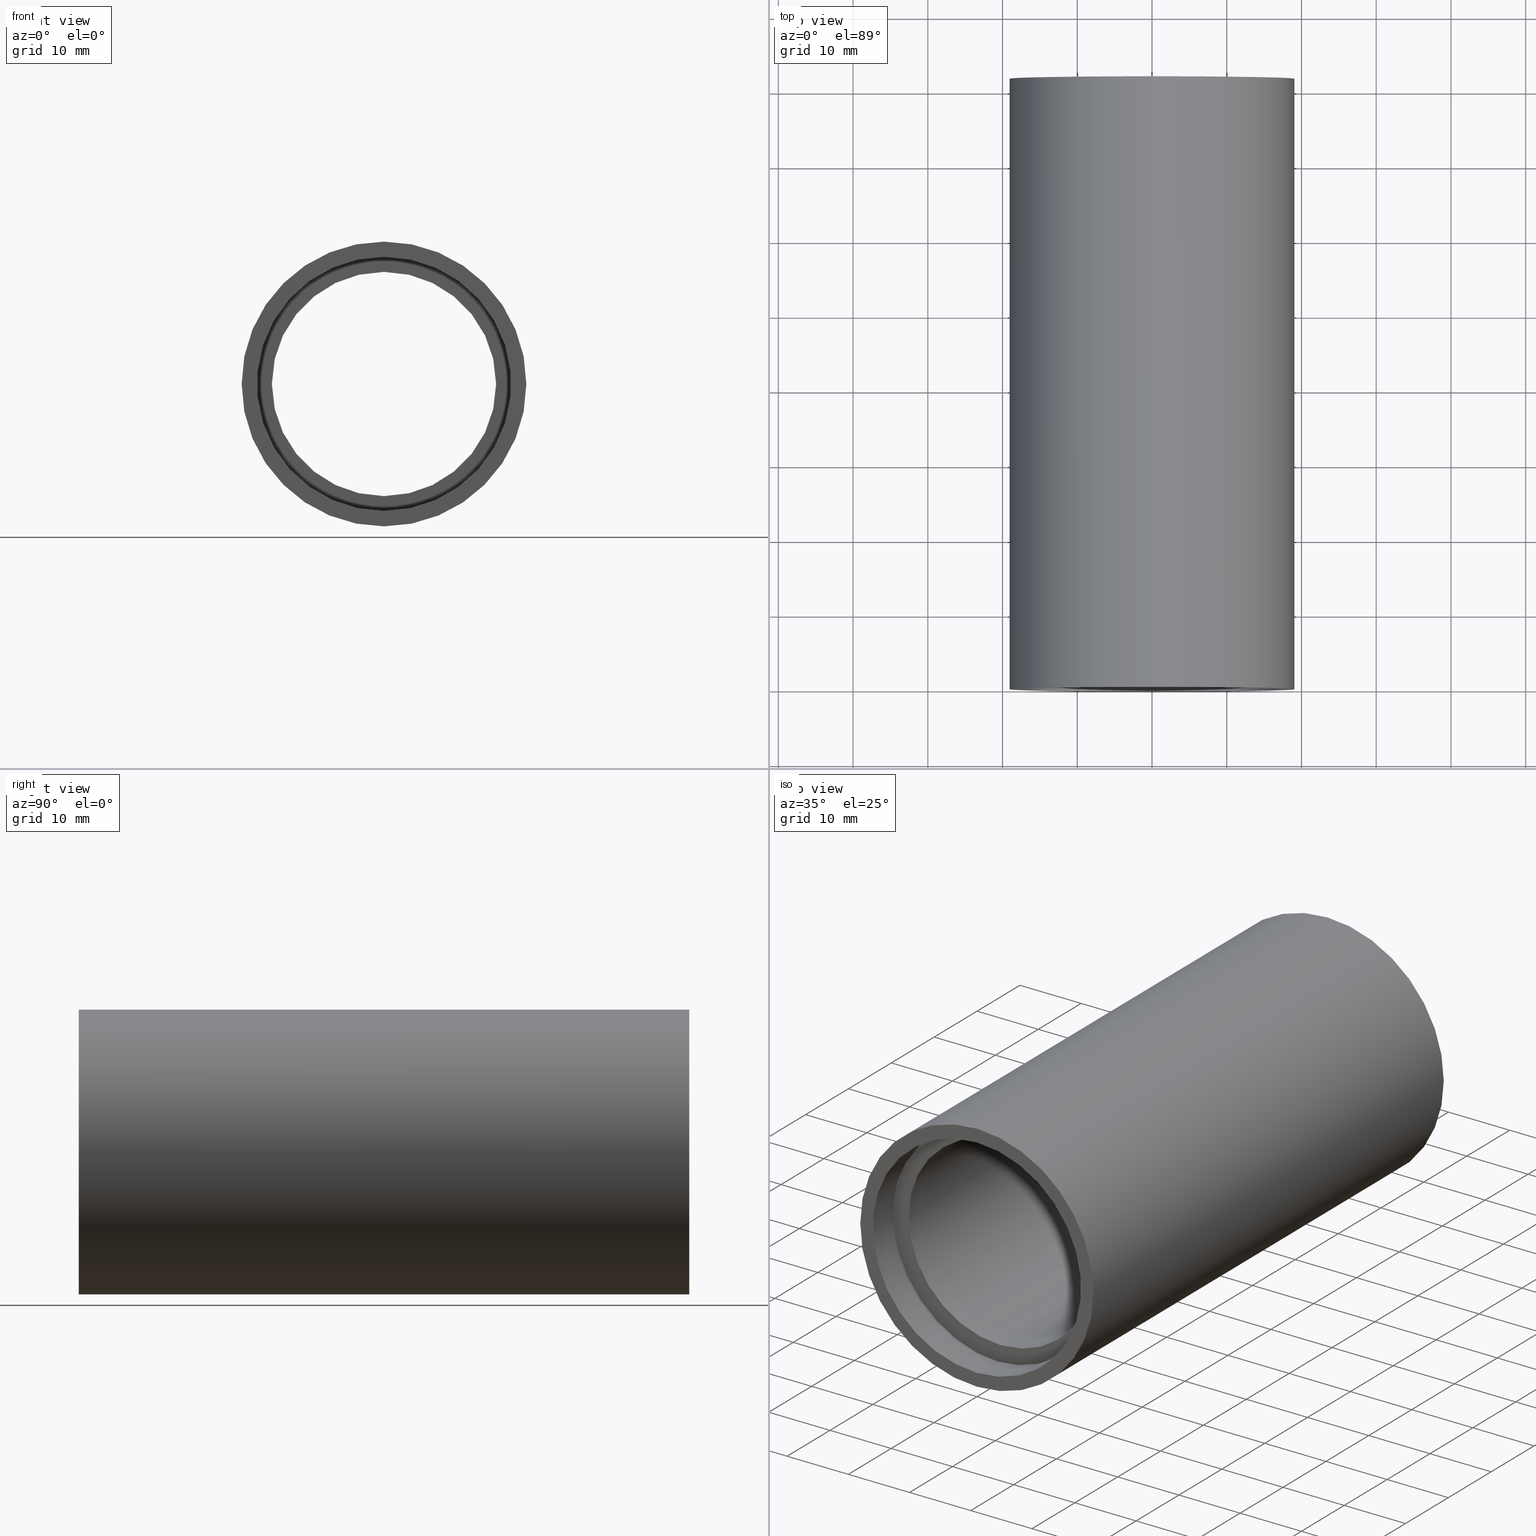
[diagram: canonical four-view strip — front | top / right | iso, engineering-drawing reading convention]
A machine part, canonical four-view strip (front | top / right | iso — engineering-drawing reading convention). The complete STEP part file that produces these views, byte-faithful:
ISO-10303-21;
HEADER;
FILE_DESCRIPTION (( 'STEP AP214' ),
    '1' );
FILE_NAME ('503039.STEP',
    '2019-09-06T01:54:21',
    ( '' ),
    ( '' ),
    'SwSTEP 2.0',
    'SolidWorks 2016',
    '' );
FILE_SCHEMA (( 'AUTOMOTIVE_DESIGN' ));
ENDSEC;

DATA;
#1 = PLANE ( 'NONE',  #54 ) ;
#2 = LINE ( 'NONE', #297, #377 ) ;
#3 = EDGE_LOOP ( 'NONE', ( #359, #121, #574, #466 ) ) ;
#4 = EDGE_CURVE ( 'NONE', #95, #38, #27, .T. ) ;
#5 = PLANE ( 'NONE',  #410 ) ;
#6 = PLANE ( 'NONE',  #172 ) ;
#7 = VERTEX_POINT ( 'NONE', #226 ) ;
#8 = VERTEX_POINT ( 'NONE', #82 ) ;
#9 = STYLED_ITEM ( 'NONE', ( #233 ), #572 ) ;
#10 = CARTESIAN_POINT ( 'NONE',  ( 0.0000000000000000000, 77.19999999999998900, 17.60000000000001200 ) ) ;
#11 = CARTESIAN_POINT ( 'NONE',  ( 0.0000000000000000000, 4.499999999999976000, 0.0000000000000000000 ) ) ;
#12 = PLANE ( 'NONE',  #41 ) ;
#13 = DIRECTION ( 'NONE',  ( 0.0000000000000000000, 0.0000000000000000000, 1.000000000000000000 ) ) ;
#14 = CARTESIAN_POINT ( 'NONE',  ( 0.0000000000000000000, 4.499999999999976000, 17.00000000000002100 ) ) ;
#15 = CIRCLE ( 'NONE', #440, 17.00000000000002100 ) ;
#16 = PRODUCT ( '503039', '503039', '', ( #19 ) ) ;
#17 = AXIS2_PLACEMENT_3D ( 'NONE', #487, #193, #330 ) ;
#18 = ORIENTED_EDGE ( 'NONE', *, *, #615, .F. ) ;
#19 = PRODUCT_CONTEXT ( 'NONE', #98, 'mechanical' ) ;
#20 = DIRECTION ( 'NONE',  ( 0.0000000000000000000, 0.0000000000000000000, 1.000000000000000000 ) ) ;
#21 = SHAPE_DEFINITION_REPRESENTATION ( #505, #159 ) ;
#22 = FACE_OUTER_BOUND ( 'NONE', #174, .T. ) ;
#23 = FACE_OUTER_BOUND ( 'NONE', #3, .T. ) ;
#24 = AXIS2_PLACEMENT_3D ( 'NONE', #261, #545, #540 ) ;
#25 = DIRECTION ( 'NONE',  ( 0.0000000000000000000, 0.0000000000000000000, 1.000000000000000000 ) ) ;
#26 = CARTESIAN_POINT ( 'NONE',  ( 1.836970198721032000E-015, 5.499999999999976900, -15.00000000000001800 ) ) ;
#27 = LINE ( 'NONE', #420, #32 ) ;
#28 = ORIENTED_EDGE ( 'NONE', *, *, #183, .F. ) ;
#29 = CARTESIAN_POINT ( 'NONE',  ( 0.0000000000000000000, 161.3761669434274500, 0.0000000000000000000 ) ) ;
#30 = ORIENTED_EDGE ( 'NONE', *, *, #162, .T. ) ;
#31 =( NAMED_UNIT ( * ) PLANE_ANGLE_UNIT ( ) SI_UNIT ( $, .RADIAN. ) );
#32 = VECTOR ( 'NONE', #619, 1000.000000000000000 ) ;
#33 = ORIENTED_EDGE ( 'NONE', *, *, #49, .F. ) ;
#34 = UNCERTAINTY_MEASURE_WITH_UNIT (LENGTH_MEASURE( 1.000000000000000100E-005 ), #136, 'distance_accuracy_value', 'NONE');
#35 = LINE ( 'NONE', #308, #396 ) ;
#36 = CARTESIAN_POINT ( 'NONE',  ( 0.0000000000000000000, 161.3761669434274500, 0.0000000000000000000 ) ) ;
#37 = CARTESIAN_POINT ( 'NONE',  ( 0.0000000000000000000, 161.3761669434274500, 19.05000000000002200 ) ) ;
#38 = VERTEX_POINT ( 'NONE', #178 ) ;
#39 = DIRECTION ( 'NONE',  ( -0.0000000000000000000, 1.000000000000000000, -0.0000000000000000000 ) ) ;
#40 = VERTEX_POINT ( 'NONE', #85 ) ;
#41 = AXIS2_PLACEMENT_3D ( 'NONE', #154, #595, #443 ) ;
#42 = CYLINDRICAL_SURFACE ( 'NONE', #88, 17.60000000000002300 ) ;
#43 = SURFACE_STYLE_USAGE ( .BOTH. , #329 ) ;
#44 = DIRECTION ( 'NONE',  ( 0.0000000000000000000, 0.0000000000000000000, 1.000000000000000000 ) ) ;
#45 = ADVANCED_FACE ( 'NONE', ( #538 ), #138, .F. ) ;
#46 = EDGE_LOOP ( 'NONE', ( #271, #371, #315, #28 ) ) ;
#47 = EDGE_LOOP ( 'NONE', ( #450, #411, #576, #534 ) ) ;
#48 = FILL_AREA_STYLE_COLOUR ( '', #364 ) ;
#49 = EDGE_CURVE ( 'NONE', #416, #95, #524, .T. ) ;
#50 = CYLINDRICAL_SURFACE ( 'NONE', #199, 15.00000000000002000 ) ;
#51 = CARTESIAN_POINT ( 'NONE',  ( 0.0000000000000000000, 5.499999999999976900, 0.0000000000000000000 ) ) ;
#52 = FILL_AREA_STYLE_COLOUR ( '', #217 ) ;
#53 = COLOUR_RGB ( '',1.000000000000000000, 1.000000000000000000, 1.000000000000000000 ) ;
#54 = AXIS2_PLACEMENT_3D ( 'NONE', #327, #618, #468 ) ;
#55 = CARTESIAN_POINT ( 'NONE',  ( 0.0000000000000000000, -2.775557561562891400E-014, 17.00000000000002100 ) ) ;
#56 = ORIENTED_EDGE ( 'NONE', *, *, #519, .F. ) ;
#57 = CARTESIAN_POINT ( 'NONE',  ( 15.00000000000002000, 76.19999999999998900, 0.0000000000000000000 ) ) ;
#58 = CARTESIAN_POINT ( 'NONE',  ( 0.0000000000000000000, 5.499999999999976900, 15.00000000000001800 ) ) ;
#59 = DIRECTION ( 'NONE',  ( 0.0000000000000000000, 0.0000000000000000000, 1.000000000000000000 ) ) ;
#60 = AXIS2_PLACEMENT_3D ( 'NONE', #289, #298, #536 ) ;
#61 = VERTEX_POINT ( 'NONE', #589 ) ;
#62 = PRESENTATION_LAYER_ASSIGNMENT (  '', '', ( #433 ) ) ;
#63 = FILL_AREA_STYLE ('',( #52 ) ) ;
#64 = FILL_AREA_STYLE ('',( #209 ) ) ;
#65 = FACE_BOUND ( 'NONE', #273, .T. ) ;
#66 = EDGE_CURVE ( 'NONE', #539, #445, #430, .T. ) ;
#67 = EDGE_LOOP ( 'NONE', ( #368, #493, #247, #525 ) ) ;
#68 = SURFACE_STYLE_USAGE ( .BOTH. , #113 ) ;
#69 = MECHANICAL_DESIGN_GEOMETRIC_PRESENTATION_REPRESENTATION (  '', ( #546 ), #521 ) ;
#70 = DIRECTION ( 'NONE',  ( 0.0000000000000000000, 0.0000000000000000000, 1.000000000000000000 ) ) ;
#71 = VERTEX_POINT ( 'NONE', #10 ) ;
#72 = ORIENTED_EDGE ( 'NONE', *, *, #590, .F. ) ;
#73 = DIRECTION ( 'NONE',  ( -0.0000000000000000000, 1.000000000000000000, -0.0000000000000000000 ) ) ;
#74 = DIRECTION ( 'NONE',  ( 0.0000000000000000000, 0.0000000000000000000, 1.000000000000000000 ) ) ;
#75 = FACE_OUTER_BOUND ( 'NONE', #616, .T. ) ;
#76 = EDGE_LOOP ( 'NONE', ( #265, #617, #324, #214 ) ) ;
#77 = AXIS2_PLACEMENT_3D ( 'NONE', #227, #457, #222 ) ;
#78 = CYLINDRICAL_SURFACE ( 'NONE', #535, 17.00000000000002100 ) ;
#79 = DIRECTION ( 'NONE',  ( -0.0000000000000000000, 1.000000000000000000, -0.0000000000000000000 ) ) ;
#80 = VECTOR ( 'NONE', #132, 1000.000000000000000 ) ;
#81 = AXIS2_PLACEMENT_3D ( 'NONE', #600, #25, #160 ) ;
#82 = CARTESIAN_POINT ( 'NONE',  ( 0.0000000000000000000, -2.775557561562891400E-014, 19.05000000000002200 ) ) ;
#83 = PRESENTATION_STYLE_ASSIGNMENT (( #397 ) ) ;
#84 = EDGE_LOOP ( 'NONE', ( #176, #492 ) ) ;
#85 = CARTESIAN_POINT ( 'NONE',  ( 2.332952152375710400E-015, 81.69999999999998900, -19.05000000000002200 ) ) ;
#86 = VERTEX_POINT ( 'NONE', #55 ) ;
#87 = SURFACE_STYLE_USAGE ( .BOTH. , #232 ) ;
#88 = AXIS2_PLACEMENT_3D ( 'NONE', #36, #366, #74 ) ;
#89 = FACE_OUTER_BOUND ( 'NONE', #593, .T. ) ;
#90 =( NAMED_UNIT ( * ) SI_UNIT ( $, .STERADIAN. ) SOLID_ANGLE_UNIT ( ) );
#91 =( NAMED_UNIT ( * ) PLANE_ANGLE_UNIT ( ) SI_UNIT ( $, .RADIAN. ) );
#92 = STYLED_ITEM ( 'NONE', ( #188 ), #369 ) ;
#93 = DIRECTION ( 'NONE',  ( -0.0000000000000000000, 1.000000000000000000, -0.0000000000000000000 ) ) ;
#94 = PRESENTATION_STYLE_ASSIGNMENT (( #442 ) ) ;
#95 = VERTEX_POINT ( 'NONE', #58 ) ;
#96 = DIRECTION ( 'NONE',  ( 0.0000000000000000000, 0.0000000000000000000, 1.000000000000000000 ) ) ;
#97 = EDGE_CURVE ( 'NONE', #437, #486, #109, .T. ) ;
#98 = APPLICATION_CONTEXT ( 'automotive_design' ) ;
#99 = DIRECTION ( 'NONE',  ( 0.0000000000000000000, -0.0000000000000000000, -1.000000000000000000 ) ) ;
#100 = ORIENTED_EDGE ( 'NONE', *, *, #567, .F. ) ;
#101 = MECHANICAL_DESIGN_GEOMETRIC_PRESENTATION_REPRESENTATION (  '', ( #9 ), #133 ) ;
#102 = DIRECTION ( 'NONE',  ( -0.0000000000000000000, 1.000000000000000000, 0.0000000000000000000 ) ) ;
#103 = ORIENTED_EDGE ( 'NONE', *, *, #293, .F. ) ;
#104 = ORIENTED_EDGE ( 'NONE', *, *, #129, .F. ) ;
#105 = DIRECTION ( 'NONE',  ( 0.0000000000000000000, 0.0000000000000000000, 1.000000000000000000 ) ) ;
#106 = DIRECTION ( 'NONE',  ( -0.0000000000000000000, 1.000000000000000000, -0.0000000000000000000 ) ) ;
#107 = DIRECTION ( 'NONE',  ( 0.0000000000000000000, 0.0000000000000000000, 1.000000000000000000 ) ) ;
#108 = AXIS2_PLACEMENT_3D ( 'NONE', #340, #198, #383 ) ;
#109 = LINE ( 'NONE', #339, #474 ) ;
#110 = DIRECTION ( 'NONE',  ( -0.0000000000000000000, 1.000000000000000000, -0.0000000000000000000 ) ) ;
#111 = EDGE_LOOP ( 'NONE', ( #334, #208 ) ) ;
#112 =( NAMED_UNIT ( * ) SI_UNIT ( $, .STERADIAN. ) SOLID_ANGLE_UNIT ( ) );
#113 = SURFACE_SIDE_STYLE ('',( #562 ) ) ;
#114 =( LENGTH_UNIT ( ) NAMED_UNIT ( * ) SI_UNIT ( .MILLI., .METRE. ) );
#115 = CIRCLE ( 'NONE', #190, 17.60000000000001200 ) ;
#116 = AXIS2_PLACEMENT_3D ( 'NONE', #161, #490, #342 ) ;
#117 = CARTESIAN_POINT ( 'NONE',  ( 0.0000000000000000000, 161.3761669434274500, 0.0000000000000000000 ) ) ;
#118 =( NAMED_UNIT ( * ) SI_UNIT ( $, .STERADIAN. ) SOLID_ANGLE_UNIT ( ) );
#119 = CIRCLE ( 'NONE', #351, 17.60000000000002300 ) ;
#120 = EDGE_LOOP ( 'NONE', ( #485, #350, #318, #296 ) ) ;
#121 = ORIENTED_EDGE ( 'NONE', *, *, #471, .T. ) ;
#122 = CARTESIAN_POINT ( 'NONE',  ( 2.155378366499343200E-015, 77.19999999999998900, -17.60000000000001200 ) ) ;
#123 = CIRCLE ( 'NONE', #177, 17.00000000000002100 ) ;
#124 = CARTESIAN_POINT ( 'NONE',  ( 2.155378366499343200E-015, 161.3761669434274500, -17.60000000000001200 ) ) ;
#125 = AXIS2_PLACEMENT_3D ( 'NONE', #425, #137, #473 ) ;
#126 = CARTESIAN_POINT ( 'NONE',  ( 0.0000000000000000000, 81.69999999999998900, 17.00000000000002100 ) ) ;
#127 = EDGE_LOOP ( 'NONE', ( #415, #72 ) ) ;
#128 = PRESENTATION_LAYER_ASSIGNMENT (  '', '', ( #546 ) ) ;
#129 = EDGE_CURVE ( 'NONE', #323, #147, #15, .T. ) ;
#130 = ORIENTED_EDGE ( 'NONE', *, *, #162, .F. ) ;
#131 = VERTEX_POINT ( 'NONE', #478 ) ;
#132 = DIRECTION ( 'NONE',  ( -0.0000000000000000000, 1.000000000000000000, -0.0000000000000000000 ) ) ;
#133 =( GEOMETRIC_REPRESENTATION_CONTEXT ( 3 ) GLOBAL_UNCERTAINTY_ASSIGNED_CONTEXT ( ( #587 ) ) GLOBAL_UNIT_ASSIGNED_CONTEXT ( ( #187, #242, #580 ) ) REPRESENTATION_CONTEXT ( 'NONE', 'WORKASPACE' ) );
#134 = CARTESIAN_POINT ( 'NONE',  ( 0.0000000000000000000, 76.19999999999998900, 17.60000000000001200 ) ) ;
#135 = SURFACE_STYLE_FILL_AREA ( #469 ) ;
#136 =( LENGTH_UNIT ( ) NAMED_UNIT ( * ) SI_UNIT ( .MILLI., .METRE. ) );
#137 = DIRECTION ( 'NONE',  ( -0.0000000000000000000, 1.000000000000000000, -0.0000000000000000000 ) ) ;
#138 = CYLINDRICAL_SURFACE ( 'NONE', #554, 17.60000000000001200 ) ;
#139 = ORIENTED_EDGE ( 'NONE', *, *, #331, .F. ) ;
#140 = PRODUCT_RELATED_PRODUCT_CATEGORY ( 'part', '', ( #16 ) ) ;
#141 = DIRECTION ( 'NONE',  ( 0.0000000000000000000, 0.0000000000000000000, 1.000000000000000000 ) ) ;
#142 = CIRCLE ( 'NONE', #245, 17.00000000000002100 ) ;
#143 = CIRCLE ( 'NONE', #462, 17.00000000000002100 ) ;
#144 = AXIS2_PLACEMENT_3D ( 'NONE', #29, #215, #560 ) ;
#145 = FACE_OUTER_BOUND ( 'NONE', #499, .T. ) ;
#146 = ORIENTED_EDGE ( 'NONE', *, *, #239, .T. ) ;
#147 = VERTEX_POINT ( 'NONE', #427 ) ;
#148 = VECTOR ( 'NONE', #267, 1000.000000000000000 ) ;
#149 = DIRECTION ( 'NONE',  ( -0.0000000000000000000, 1.000000000000000000, -0.0000000000000000000 ) ) ;
#150 = MECHANICAL_DESIGN_GEOMETRIC_PRESENTATION_REPRESENTATION (  '', ( #220 ), #210 ) ;
#151 = SURFACE_SIDE_STYLE ('',( #548 ) ) ;
#152 = FACE_OUTER_BOUND ( 'NONE', #111, .T. ) ;
#153 = ORIENTED_EDGE ( 'NONE', *, *, #621, .F. ) ;
#154 = CARTESIAN_POINT ( 'NONE',  ( 17.00000000000002100, -1.527582111260147300E-014, 0.0000000000000000000 ) ) ;
#155 = AXIS2_PLACEMENT_3D ( 'NONE', #489, #256, #596 ) ;
#156 = LINE ( 'NONE', #37, #398 ) ;
#157 = DIRECTION ( 'NONE',  ( -0.0000000000000000000, 1.000000000000000000, -0.0000000000000000000 ) ) ;
#158 = FILL_AREA_STYLE ('',( #206 ) ) ;
#159 = ADVANCED_BREP_SHAPE_REPRESENTATION ( '503039', ( #565, #81 ), #384 ) ;
#160 = DIRECTION ( 'NONE',  ( 1.000000000000000000, 0.0000000000000000000, 0.0000000000000000000 ) ) ;
#161 = CARTESIAN_POINT ( 'NONE',  ( 0.0000000000000000000, 81.69999999999998900, 0.0000000000000000000 ) ) ;
#162 = EDGE_CURVE ( 'NONE', #8, #409, #512, .T. ) ;
#163 = FACE_OUTER_BOUND ( 'NONE', #47, .T. ) ;
#164 = SURFACE_STYLE_FILL_AREA ( #502 ) ;
#165 = AXIS2_PLACEMENT_3D ( 'NONE', #577, #444, #13 ) ;
#166 = ORIENTED_EDGE ( 'NONE', *, *, #97, .T. ) ;
#167 = SURFACE_SIDE_STYLE ('',( #407 ) ) ;
#168 = CYLINDRICAL_SURFACE ( 'NONE', #195, 19.05000000000002200 ) ;
#169 = FACE_OUTER_BOUND ( 'NONE', #182, .T. ) ;
#170 = DIRECTION ( 'NONE',  ( -0.0000000000000000000, 1.000000000000000000, -0.0000000000000000000 ) ) ;
#171 = FACE_OUTER_BOUND ( 'NONE', #120, .T. ) ;
#172 = AXIS2_PLACEMENT_3D ( 'NONE', #57, #387, #99 ) ;
#173 = CARTESIAN_POINT ( 'NONE',  ( 0.0000000000000000000, 161.3761669434274500, 0.0000000000000000000 ) ) ;
#174 = EDGE_LOOP ( 'NONE', ( #139, #451 ) ) ;
#175 = EDGE_LOOP ( 'NONE', ( #229, #201 ) ) ;
#176 = ORIENTED_EDGE ( 'NONE', *, *, #320, .F. ) ;
#177 = AXIS2_PLACEMENT_3D ( 'NONE', #476, #189, #529 ) ;
#178 = CARTESIAN_POINT ( 'NONE',  ( 0.0000000000000000000, 76.19999999999998900, 15.00000000000002000 ) ) ;
#179 = DIRECTION ( 'NONE',  ( -0.0000000000000000000, 1.000000000000000000, -0.0000000000000000000 ) ) ;
#180 = ADVANCED_FACE ( 'NONE', ( #192, #145 ), #5, .F. ) ;
#181 = FILL_AREA_STYLE_COLOUR ( '', #479 ) ;
#182 = EDGE_LOOP ( 'NONE', ( #30, #266, #549, #506 ) ) ;
#183 = EDGE_CURVE ( 'NONE', #539, #71, #291, .T. ) ;
#184 = CARTESIAN_POINT ( 'NONE',  ( 0.0000000000000000000, 161.3761669434274500, 0.0000000000000000000 ) ) ;
#185 = AXIS2_PLACEMENT_3D ( 'NONE', #258, #205, #20 ) ;
#186 = ADVANCED_FACE ( 'NONE', ( #65, #75 ), #585, .F. ) ;
#187 =( LENGTH_UNIT ( ) NAMED_UNIT ( * ) SI_UNIT ( .MILLI., .METRE. ) );
#188 = PRESENTATION_STYLE_ASSIGNMENT (( #270 ) ) ;
#189 = DIRECTION ( 'NONE',  ( -0.0000000000000000000, 1.000000000000000000, -0.0000000000000000000 ) ) ;
#190 = AXIS2_PLACEMENT_3D ( 'NONE', #496, #557, #605 ) ;
#191 = FILL_AREA_STYLE ('',( #48 ) ) ;
#192 = FACE_BOUND ( 'NONE', #424, .T. ) ;
#193 = DIRECTION ( 'NONE',  ( -0.0000000000000000000, 1.000000000000000000, -0.0000000000000000000 ) ) ;
#194 = EDGE_LOOP ( 'NONE', ( #561, #284, #309, #607 ) ) ;
#195 = AXIS2_PLACEMENT_3D ( 'NONE', #117, #106, #288 ) ;
#196 = EDGE_CURVE ( 'NONE', #416, #516, #392, .T. ) ;
#197 = DIRECTION ( 'NONE',  ( 0.0000000000000000000, -0.0000000000000000000, -1.000000000000000000 ) ) ;
#198 = DIRECTION ( 'NONE',  ( 0.0000000000000000000, -1.000000000000000000, 0.0000000000000000000 ) ) ;
#199 = AXIS2_PLACEMENT_3D ( 'NONE', #184, #332, #379 ) ;
#200 = CARTESIAN_POINT ( 'NONE',  ( 2.081899558550503000E-015, 81.69999999999998900, -17.00000000000002100 ) ) ;
#201 = ORIENTED_EDGE ( 'NONE', *, *, #49, .T. ) ;
#202 = ORIENTED_EDGE ( 'NONE', *, *, #494, .T. ) ;
#203 =( LENGTH_UNIT ( ) NAMED_UNIT ( * ) SI_UNIT ( .MILLI., .METRE. ) );
#204 = PRESENTATION_STYLE_ASSIGNMENT (( #354 ) ) ;
#205 = DIRECTION ( 'NONE',  ( -0.0000000000000000000, 1.000000000000000000, -0.0000000000000000000 ) ) ;
#206 = FILL_AREA_STYLE_COLOUR ( '', #53 ) ;
#207 = FACE_BOUND ( 'NONE', #127, .T. ) ;
#208 = ORIENTED_EDGE ( 'NONE', *, *, #447, .T. ) ;
#209 = FILL_AREA_STYLE_COLOUR ( '', #449 ) ;
#210 =( GEOMETRIC_REPRESENTATION_CONTEXT ( 3 ) GLOBAL_UNCERTAINTY_ASSIGNED_CONTEXT ( ( #34 ) ) GLOBAL_UNIT_ASSIGNED_CONTEXT ( ( #136, #374, #90 ) ) REPRESENTATION_CONTEXT ( 'NONE', 'WORKASPACE' ) );
#211 =( NAMED_UNIT ( * ) PLANE_ANGLE_UNIT ( ) SI_UNIT ( $, .RADIAN. ) );
#212 = FILL_AREA_STYLE_COLOUR ( '', #328 ) ;
#213 = SURFACE_STYLE_FILL_AREA ( #64 ) ;
#214 = ORIENTED_EDGE ( 'NONE', *, *, #97, .F. ) ;
#215 = DIRECTION ( 'NONE',  ( -0.0000000000000000000, 1.000000000000000000, -0.0000000000000000000 ) ) ;
#216 = PRODUCT_DEFINITION_CONTEXT ( 'detailed design', #441, 'design' ) ;
#217 = COLOUR_RGB ( '',1.000000000000000000, 1.000000000000000000, 1.000000000000000000 ) ;
#218 = SURFACE_SIDE_STYLE ('',( #164 ) ) ;
#219 = FACE_OUTER_BOUND ( 'NONE', #240, .T. ) ;
#220 = STYLED_ITEM ( 'NONE', ( #460 ), #531 ) ;
#221 = ORIENTED_EDGE ( 'NONE', *, *, #275, .F. ) ;
#222 = DIRECTION ( 'NONE',  ( 0.0000000000000000000, 0.0000000000000000000, 1.000000000000000000 ) ) ;
#223 = LINE ( 'NONE', #609, #588 ) ;
#224 = EDGE_CURVE ( 'NONE', #7, #598, #2, .T. ) ;
#225 = CARTESIAN_POINT ( 'NONE',  ( 0.0000000000000000000, 161.3761669434274500, 0.0000000000000000000 ) ) ;
#226 = CARTESIAN_POINT ( 'NONE',  ( 2.155378366499344400E-015, 4.499999999999976000, -17.60000000000002300 ) ) ;
#227 = CARTESIAN_POINT ( 'NONE',  ( 0.0000000000000000000, 5.499999999999976900, 0.0000000000000000000 ) ) ;
#228 = ORIENTED_EDGE ( 'NONE', *, *, #590, .T. ) ;
#229 = ORIENTED_EDGE ( 'NONE', *, *, #503, .T. ) ;
#230 = AXIS2_PLACEMENT_3D ( 'NONE', #583, #157, #346 ) ;
#231 = ADVANCED_FACE ( 'NONE', ( #207, #152 ), #6, .F. ) ;
#232 = SURFACE_SIDE_STYLE ('',( #586 ) ) ;
#233 = PRESENTATION_STYLE_ASSIGNMENT (( #87 ) ) ;
#234 = ADVANCED_FACE ( 'NONE', ( #532, #386 ), #389, .F. ) ;
#235 = DIRECTION ( 'NONE',  ( -0.0000000000000000000, 1.000000000000000000, -0.0000000000000000000 ) ) ;
#236 = CARTESIAN_POINT ( 'NONE',  ( 0.0000000000000000000, 161.3761669434274500, 0.0000000000000000000 ) ) ;
#237 = PRESENTATION_LAYER_ASSIGNMENT (  '', '', ( #313 ) ) ;
#238 = ORIENTED_EDGE ( 'NONE', *, *, #610, .T. ) ;
#239 = EDGE_CURVE ( 'NONE', #61, #40, #568, .T. ) ;
#240 = EDGE_LOOP ( 'NONE', ( #130, #592 ) ) ;
#241 = FILL_AREA_STYLE_COLOUR ( '', #578 ) ;
#242 =( NAMED_UNIT ( * ) PLANE_ANGLE_UNIT ( ) SI_UNIT ( $, .RADIAN. ) );
#243 = FACE_OUTER_BOUND ( 'NONE', #362, .T. ) ;
#244 = DIRECTION ( 'NONE',  ( 0.0000000000000000000, -1.000000000000000000, 0.0000000000000000000 ) ) ;
#245 = AXIS2_PLACEMENT_3D ( 'NONE', #472, #526, #283 ) ;
#246 = DIRECTION ( 'NONE',  ( -0.0000000000000000000, 1.000000000000000000, -0.0000000000000000000 ) ) ;
#247 = ORIENTED_EDGE ( 'NONE', *, *, #528, .T. ) ;
#248 = VERTEX_POINT ( 'NONE', #200 ) ;
#249 = CARTESIAN_POINT ( 'NONE',  ( 0.0000000000000000000, 4.499999999999976000, 0.0000000000000000000 ) ) ;
#250 = PRESENTATION_STYLE_ASSIGNMENT (( #43 ) ) ;
#251 = EDGE_CURVE ( 'NONE', #38, #516, #581, .T. ) ;
#252 = DIRECTION ( 'NONE',  ( -0.0000000000000000000, 1.000000000000000000, -0.0000000000000000000 ) ) ;
#253 = UNCERTAINTY_MEASURE_WITH_UNIT (LENGTH_MEASURE( 1.000000000000000100E-005 ), #401, 'distance_accuracy_value', 'NONE');
#254 = CIRCLE ( 'NONE', #510, 17.60000000000002300 ) ;
#255 = ORIENTED_EDGE ( 'NONE', *, *, #262, .T. ) ;
#256 = DIRECTION ( 'NONE',  ( -0.0000000000000000000, 1.000000000000000000, -0.0000000000000000000 ) ) ;
#257 = AXIS2_PLACEMENT_3D ( 'NONE', #225, #170, #285 ) ;
#258 = CARTESIAN_POINT ( 'NONE',  ( 0.0000000000000000000, 161.3761669434274500, 0.0000000000000000000 ) ) ;
#259 = COLOUR_RGB ( '',1.000000000000000000, 1.000000000000000000, 1.000000000000000000 ) ;
#260 = CARTESIAN_POINT ( 'NONE',  ( 0.0000000000000000000, 77.19999999999998900, 0.0000000000000000000 ) ) ;
#261 = CARTESIAN_POINT ( 'NONE',  ( 0.0000000000000000000, 76.19999999999998900, 0.0000000000000000000 ) ) ;
#262 = EDGE_CURVE ( 'NONE', #131, #7, #254, .T. ) ;
#263 =( NAMED_UNIT ( * ) SI_UNIT ( $, .STERADIAN. ) SOLID_ANGLE_UNIT ( ) );
#264 = CIRCLE ( 'NONE', #116, 17.00000000000002100 ) ;
#265 = ORIENTED_EDGE ( 'NONE', *, *, #418, .F. ) ;
#266 = ORIENTED_EDGE ( 'NONE', *, *, #399, .T. ) ;
#267 = DIRECTION ( 'NONE',  ( -0.0000000000000000000, 1.000000000000000000, -0.0000000000000000000 ) ) ;
#268 = PRESENTATION_LAYER_ASSIGNMENT (  '', '', ( #92 ) ) ;
#269 = FACE_BOUND ( 'NONE', #438, .T. ) ;
#270 = SURFACE_STYLE_USAGE ( .BOTH. , #167 ) ;
#271 = ORIENTED_EDGE ( 'NONE', *, *, #447, .F. ) ;
#272 = CARTESIAN_POINT ( 'NONE',  ( 0.0000000000000000000, -2.775557561562891400E-014, 0.0000000000000000000 ) ) ;
#273 = EDGE_LOOP ( 'NONE', ( #500, #103 ) ) ;
#274 = CARTESIAN_POINT ( 'NONE',  ( 0.0000000000000000000, -2.775557561562891400E-014, 0.0000000000000000000 ) ) ;
#275 = EDGE_CURVE ( 'NONE', #7, #131, #497, .T. ) ;
#276 = LINE ( 'NONE', #429, #326 ) ;
#277 = UNCERTAINTY_MEASURE_WITH_UNIT (LENGTH_MEASURE( 1.000000000000000100E-005 ), #114, 'distance_accuracy_value', 'NONE');
#278 = FACE_OUTER_BOUND ( 'NONE', #582, .T. ) ;
#279 = ORIENTED_EDGE ( 'NONE', *, *, #129, .T. ) ;
#280 =( GEOMETRIC_REPRESENTATION_CONTEXT ( 3 ) GLOBAL_UNCERTAINTY_ASSIGNED_CONTEXT ( ( #612 ) ) GLOBAL_UNIT_ASSIGNED_CONTEXT ( ( #543, #597, #305 ) ) REPRESENTATION_CONTEXT ( 'NONE', 'WORKASPACE' ) );
#281 = VERTEX_POINT ( 'NONE', #491 ) ;
#282 = ADVANCED_FACE ( 'NONE', ( #219, #349 ), #12, .F. ) ;
#283 = DIRECTION ( 'NONE',  ( 0.0000000000000000000, 0.0000000000000000000, 1.000000000000000000 ) ) ;
#284 = ORIENTED_EDGE ( 'NONE', *, *, #66, .F. ) ;
#285 = DIRECTION ( 'NONE',  ( 0.0000000000000000000, 0.0000000000000000000, 1.000000000000000000 ) ) ;
#286 = LINE ( 'NONE', #523, #501 ) ;
#287 = PRESENTATION_LAYER_ASSIGNMENT (  '', '', ( #422 ) ) ;
#288 = DIRECTION ( 'NONE',  ( 0.0000000000000000000, 0.0000000000000000000, 1.000000000000000000 ) ) ;
#289 = CARTESIAN_POINT ( 'NONE',  ( 0.0000000000000000000, 76.19999999999998900, 0.0000000000000000000 ) ) ;
#290 = PRODUCT_DEFINITION ( 'δ֪', '', #435, #216 ) ;
#291 = LINE ( 'NONE', #337, #484 ) ;
#292 = UNCERTAINTY_MEASURE_WITH_UNIT (LENGTH_MEASURE( 1.000000000000000100E-005 ), #402, 'distance_accuracy_value', 'NONE');
#293 = EDGE_CURVE ( 'NONE', #248, #486, #264, .T. ) ;
#294 = EDGE_LOOP ( 'NONE', ( #569, #431 ) ) ;
#295 = ADVANCED_FACE ( 'NONE', ( #307 ), #464, .F. ) ;
#296 = ORIENTED_EDGE ( 'NONE', *, *, #251, .T. ) ;
#297 = CARTESIAN_POINT ( 'NONE',  ( 2.155378366499344400E-015, 161.3761669434274500, -17.60000000000002300 ) ) ;
#298 = DIRECTION ( 'NONE',  ( -0.0000000000000000000, 1.000000000000000000, -0.0000000000000000000 ) ) ;
#299 = AXIS2_PLACEMENT_3D ( 'NONE', #613, #179, #370 ) ;
#300 = DIRECTION ( 'NONE',  ( -0.0000000000000000000, 1.000000000000000000, -0.0000000000000000000 ) ) ;
#301 = ORIENTED_EDGE ( 'NONE', *, *, #4, .F. ) ;
#302 = ORIENTED_EDGE ( 'NONE', *, *, #528, .F. ) ;
#303 = CIRCLE ( 'NONE', #230, 17.60000000000002300 ) ;
#304 = CIRCLE ( 'NONE', #614, 17.60000000000001200 ) ;
#305 =( NAMED_UNIT ( * ) SI_UNIT ( $, .STERADIAN. ) SOLID_ANGLE_UNIT ( ) );
#306 = SURFACE_SIDE_STYLE ('',( #213 ) ) ;
#307 = FACE_OUTER_BOUND ( 'NONE', #475, .T. ) ;
#308 = CARTESIAN_POINT ( 'NONE',  ( 0.0000000000000000000, 161.3761669434274500, 17.00000000000002100 ) ) ;
#309 = ORIENTED_EDGE ( 'NONE', *, *, #183, .T. ) ;
#310 = DIRECTION ( 'NONE',  ( 0.0000000000000000000, 0.0000000000000000000, 1.000000000000000000 ) ) ;
#311 = AXIS2_PLACEMENT_3D ( 'NONE', #547, #436, #347 ) ;
#312 = DIRECTION ( 'NONE',  ( -0.0000000000000000000, 1.000000000000000000, -0.0000000000000000000 ) ) ;
#313 = STYLED_ITEM ( 'NONE', ( #454 ), #159 ) ;
#314 = DIRECTION ( 'NONE',  ( -0.0000000000000000000, 1.000000000000000000, -0.0000000000000000000 ) ) ;
#315 = ORIENTED_EDGE ( 'NONE', *, *, #345, .T. ) ;
#316 = CYLINDRICAL_SURFACE ( 'NONE', #311, 17.00000000000002100 ) ;
#317 = MECHANICAL_DESIGN_GEOMETRIC_PRESENTATION_REPRESENTATION (  '', ( #422 ), #280 ) ;
#318 = ORIENTED_EDGE ( 'NONE', *, *, #4, .T. ) ;
#319 = DIRECTION ( 'NONE',  ( 0.0000000000000000000, 0.0000000000000000000, 1.000000000000000000 ) ) ;
#320 = EDGE_CURVE ( 'NONE', #281, #598, #119, .T. ) ;
#321 = ADVANCED_FACE ( 'NONE', ( #163 ), #606, .F. ) ;
#322 = PRESENTATION_LAYER_ASSIGNMENT (  '', '', ( #220 ) ) ;
#323 = VERTEX_POINT ( 'NONE', #14 ) ;
#324 = ORIENTED_EDGE ( 'NONE', *, *, #293, .T. ) ;
#325 = ADVANCED_FACE ( 'NONE', ( #341 ), #316, .F. ) ;
#326 = VECTOR ( 'NONE', #439, 1000.000000000000000 ) ;
#327 = CARTESIAN_POINT ( 'NONE',  ( 17.60000000000001200, 77.19999999999998900, 0.0000000000000000000 ) ) ;
#328 = COLOUR_RGB ( '',1.000000000000000000, 1.000000000000000000, 1.000000000000000000 ) ;
#329 = SURFACE_SIDE_STYLE ('',( #135 ) ) ;
#330 = DIRECTION ( 'NONE',  ( 0.0000000000000000000, 0.0000000000000000000, 1.000000000000000000 ) ) ;
#331 = EDGE_CURVE ( 'NONE', #71, #394, #304, .T. ) ;
#332 = DIRECTION ( 'NONE',  ( -0.0000000000000000000, 1.000000000000000000, -0.0000000000000000000 ) ) ;
#333 = DIRECTION ( 'NONE',  ( 0.0000000000000000000, 0.0000000000000000000, 1.000000000000000000 ) ) ;
#334 = ORIENTED_EDGE ( 'NONE', *, *, #66, .T. ) ;
#335 = UNCERTAINTY_MEASURE_WITH_UNIT (LENGTH_MEASURE( 1.000000000000000100E-005 ), #356, 'distance_accuracy_value', 'NONE');
#336 =( NAMED_UNIT ( * ) SI_UNIT ( $, .STERADIAN. ) SOLID_ANGLE_UNIT ( ) );
#337 = CARTESIAN_POINT ( 'NONE',  ( 0.0000000000000000000, 161.3761669434274500, 17.60000000000001200 ) ) ;
#338 = AXIS2_PLACEMENT_3D ( 'NONE', #603, #312, #556 ) ;
#339 = CARTESIAN_POINT ( 'NONE',  ( 0.0000000000000000000, 161.3761669434274500, 17.00000000000002100 ) ) ;
#340 = CARTESIAN_POINT ( 'NONE',  ( 17.00000000000002100, 81.69999999999998900, 0.0000000000000000000 ) ) ;
#341 = FACE_OUTER_BOUND ( 'NONE', #67, .T. ) ;
#342 = DIRECTION ( 'NONE',  ( 0.0000000000000000000, 0.0000000000000000000, 1.000000000000000000 ) ) ;
#343 = FACE_OUTER_BOUND ( 'NONE', #194, .T. ) ;
#344 = DIRECTION ( 'NONE',  ( -0.0000000000000000000, 1.000000000000000000, -0.0000000000000000000 ) ) ;
#345 = EDGE_CURVE ( 'NONE', #394, #71, #115, .T. ) ;
#346 = DIRECTION ( 'NONE',  ( 0.0000000000000000000, 0.0000000000000000000, 1.000000000000000000 ) ) ;
#347 = DIRECTION ( 'NONE',  ( 0.0000000000000000000, 0.0000000000000000000, 1.000000000000000000 ) ) ;
#348 = DIRECTION ( 'NONE',  ( 0.0000000000000000000, 0.0000000000000000000, 1.000000000000000000 ) ) ;
#349 = FACE_BOUND ( 'NONE', #294, .T. ) ;
#350 = ORIENTED_EDGE ( 'NONE', *, *, #503, .F. ) ;
#351 = AXIS2_PLACEMENT_3D ( 'NONE', #400, #252, #348 ) ;
#352 = CARTESIAN_POINT ( 'NONE',  ( 0.0000000000000000000, 4.499999999999976000, 0.0000000000000000000 ) ) ;
#353 = DIRECTION ( 'NONE',  ( 0.0000000000000000000, 0.0000000000000000000, 1.000000000000000000 ) ) ;
#354 = SURFACE_STYLE_USAGE ( .BOTH. , #218 ) ;
#355 = EDGE_CURVE ( 'NONE', #467, #86, #365, .T. ) ;
#356 =( LENGTH_UNIT ( ) NAMED_UNIT ( * ) SI_UNIT ( .MILLI., .METRE. ) );
#357 = ORIENTED_EDGE ( 'NONE', *, *, #224, .T. ) ;
#358 = CARTESIAN_POINT ( 'NONE',  ( 2.332952152375710400E-015, -2.775557561562891400E-014, -19.05000000000002200 ) ) ;
#359 = ORIENTED_EDGE ( 'NONE', *, *, #399, .F. ) ;
#360 = STYLED_ITEM ( 'NONE', ( #250 ), #565 ) ;
#361 = CYLINDRICAL_SURFACE ( 'NONE', #257, 17.60000000000001200 ) ;
#362 = EDGE_LOOP ( 'NONE', ( #611, #153, #166, #202 ) ) ;
#363 = DIRECTION ( 'NONE',  ( -0.0000000000000000000, 1.000000000000000000, -0.0000000000000000000 ) ) ;
#364 = COLOUR_RGB ( '',1.000000000000000000, 1.000000000000000000, 1.000000000000000000 ) ;
#365 = CIRCLE ( 'NONE', #477, 17.00000000000002100 ) ;
#366 = DIRECTION ( 'NONE',  ( -0.0000000000000000000, 1.000000000000000000, -0.0000000000000000000 ) ) ;
#367 = AXIS2_PLACEMENT_3D ( 'NONE', #563, #453, #310 ) ;
#368 = ORIENTED_EDGE ( 'NONE', *, *, #355, .F. ) ;
#369 = ADVANCED_FACE ( 'NONE', ( #570 ), #495, .F. ) ;
#370 = DIRECTION ( 'NONE',  ( 0.0000000000000000000, 0.0000000000000000000, 1.000000000000000000 ) ) ;
#371 = ORIENTED_EDGE ( 'NONE', *, *, #385, .T. ) ;
#372 = CARTESIAN_POINT ( 'NONE',  ( 2.155378366499344400E-015, 5.499999999999976900, -17.60000000000002300 ) ) ;
#373 = CIRCLE ( 'NONE', #77, 15.00000000000001800 ) ;
#374 =( NAMED_UNIT ( * ) PLANE_ANGLE_UNIT ( ) SI_UNIT ( $, .RADIAN. ) );
#375 = AXIS2_PLACEMENT_3D ( 'NONE', #51, #149, #141 ) ;
#376 = SURFACE_SIDE_STYLE ('',( #622 ) ) ;
#377 = VECTOR ( 'NONE', #93, 1000.000000000000000 ) ;
#378 =( LENGTH_UNIT ( ) NAMED_UNIT ( * ) SI_UNIT ( .MILLI., .METRE. ) );
#379 = DIRECTION ( 'NONE',  ( 0.0000000000000000000, 0.0000000000000000000, 1.000000000000000000 ) ) ;
#380 = MECHANICAL_DESIGN_GEOMETRIC_PRESENTATION_REPRESENTATION (  '', ( #92 ), #488 ) ;
#381 = DIRECTION ( 'NONE',  ( -0.0000000000000000000, 1.000000000000000000, -0.0000000000000000000 ) ) ;
#382 =( NAMED_UNIT ( * ) PLANE_ANGLE_UNIT ( ) SI_UNIT ( $, .RADIAN. ) );
#383 = DIRECTION ( 'NONE',  ( 0.0000000000000000000, -0.0000000000000000000, -1.000000000000000000 ) ) ;
#384 =( GEOMETRIC_REPRESENTATION_CONTEXT ( 3 ) GLOBAL_UNCERTAINTY_ASSIGNED_CONTEXT ( ( #426 ) ) GLOBAL_UNIT_ASSIGNED_CONTEXT ( ( #203, #211, #336 ) ) REPRESENTATION_CONTEXT ( 'NONE', 'WORKASPACE' ) );
#385 = EDGE_CURVE ( 'NONE', #445, #394, #602, .T. ) ;
#386 = FACE_BOUND ( 'NONE', #175, .T. ) ;
#387 = DIRECTION ( 'NONE',  ( 0.0000000000000000000, -1.000000000000000000, 0.0000000000000000000 ) ) ;
#388 = ORIENTED_EDGE ( 'NONE', *, *, #514, .T. ) ;
#389 = PLANE ( 'NONE',  #390 ) ;
#390 = AXIS2_PLACEMENT_3D ( 'NONE', #483, #102, #434 ) ;
#391 = DIRECTION ( 'NONE',  ( -0.0000000000000000000, 1.000000000000000000, -0.0000000000000000000 ) ) ;
#392 = LINE ( 'NONE', #533, #504 ) ;
#393 = DIRECTION ( 'NONE',  ( -0.0000000000000000000, 1.000000000000000000, -0.0000000000000000000 ) ) ;
#394 = VERTEX_POINT ( 'NONE', #122 ) ;
#395 = APPLICATION_PROTOCOL_DEFINITION ( 'draft international standard', 'automotive_design', 1998, #98 ) ;
#396 = VECTOR ( 'NONE', #393, 1000.000000000000000 ) ;
#397 = SURFACE_STYLE_USAGE ( .BOTH. , #306 ) ;
#398 = VECTOR ( 'NONE', #363, 1000.000000000000000 ) ;
#399 = EDGE_CURVE ( 'NONE', #409, #40, #223, .T. ) ;
#400 = CARTESIAN_POINT ( 'NONE',  ( 0.0000000000000000000, 5.499999999999976900, 0.0000000000000000000 ) ) ;
#401 =( LENGTH_UNIT ( ) NAMED_UNIT ( * ) SI_UNIT ( .MILLI., .METRE. ) );
#402 =( LENGTH_UNIT ( ) NAMED_UNIT ( * ) SI_UNIT ( .MILLI., .METRE. ) );
#403 = ORIENTED_EDGE ( 'NONE', *, *, #275, .T. ) ;
#404 = ORIENTED_EDGE ( 'NONE', *, *, #196, .T. ) ;
#405 = PRESENTATION_LAYER_ASSIGNMENT (  '', '', ( #360 ) ) ;
#406 = FILL_AREA_STYLE ('',( #212 ) ) ;
#407 = SURFACE_STYLE_FILL_AREA ( #406 ) ;
#408 = DIRECTION ( 'NONE',  ( -0.0000000000000000000, 1.000000000000000000, -0.0000000000000000000 ) ) ;
#409 = VERTEX_POINT ( 'NONE', #358 ) ;
#410 = AXIS2_PLACEMENT_3D ( 'NONE', #530, #244, #197 ) ;
#411 = ORIENTED_EDGE ( 'NONE', *, *, #262, .F. ) ;
#412 = CARTESIAN_POINT ( 'NONE',  ( 0.0000000000000000000, 77.19999999999998900, 17.00000000000002100 ) ) ;
#413 = DIRECTION ( 'NONE',  ( -0.0000000000000000000, 1.000000000000000000, -0.0000000000000000000 ) ) ;
#414 = AXIS2_PLACEMENT_3D ( 'NONE', #173, #508, #319 ) ;
#415 = ORIENTED_EDGE ( 'NONE', *, *, #251, .F. ) ;
#416 = VERTEX_POINT ( 'NONE', #26 ) ;
#417 = DIRECTION ( 'NONE',  ( 0.0000000000000000000, 0.0000000000000000000, 1.000000000000000000 ) ) ;
#418 = EDGE_CURVE ( 'NONE', #459, #437, #564, .T. ) ;
#419 = CARTESIAN_POINT ( 'NONE',  ( 1.836970198721032300E-015, 76.19999999999998900, -15.00000000000002000 ) ) ;
#420 = CARTESIAN_POINT ( 'NONE',  ( 0.0000000000000000000, 161.3761669434274500, 15.00000000000002000 ) ) ;
#421 = ADVANCED_FACE ( 'NONE', ( #171 ), #555, .F. ) ;
#422 = STYLED_ITEM ( 'NONE', ( #94 ), #295 ) ;
#423 = ORIENTED_EDGE ( 'NONE', *, *, #621, .T. ) ;
#424 = EDGE_LOOP ( 'NONE', ( #104, #302 ) ) ;
#425 = CARTESIAN_POINT ( 'NONE',  ( 0.0000000000000000000, 81.69999999999998900, 0.0000000000000000000 ) ) ;
#426 = UNCERTAINTY_MEASURE_WITH_UNIT (LENGTH_MEASURE( 1.000000000000000100E-005 ), #203, 'distance_accuracy_value', 'NONE');
#427 = CARTESIAN_POINT ( 'NONE',  ( 2.081899558550503000E-015, 4.499999999999976000, -17.00000000000002100 ) ) ;
#428 = EDGE_CURVE ( 'NONE', #8, #61, #156, .T. ) ;
#429 = CARTESIAN_POINT ( 'NONE',  ( 2.081899558550503000E-015, 161.3761669434274500, -17.00000000000002100 ) ) ;
#430 = CIRCLE ( 'NONE', #60, 17.60000000000001200 ) ;
#431 = ORIENTED_EDGE ( 'NONE', *, *, #355, .T. ) ;
#432 = CIRCLE ( 'NONE', #511, 17.00000000000002100 ) ;
#433 = STYLED_ITEM ( 'NONE', ( #83 ), #325 ) ;
#434 = DIRECTION ( 'NONE',  ( 0.0000000000000000000, 0.0000000000000000000, 1.000000000000000000 ) ) ;
#435 = PRODUCT_DEFINITION_FORMATION_WITH_SPECIFIED_SOURCE ( '�κ�', '', #16, .NOT_KNOWN. ) ;
#436 = DIRECTION ( 'NONE',  ( -0.0000000000000000000, 1.000000000000000000, -0.0000000000000000000 ) ) ;
#437 = VERTEX_POINT ( 'NONE', #412 ) ;
#438 = EDGE_LOOP ( 'NONE', ( #423, #515 ) ) ;
#439 = DIRECTION ( 'NONE',  ( -0.0000000000000000000, 1.000000000000000000, -0.0000000000000000000 ) ) ;
#440 = AXIS2_PLACEMENT_3D ( 'NONE', #249, #381, #333 ) ;
#441 = APPLICATION_CONTEXT ( 'automotive_design' ) ;
#442 = SURFACE_STYLE_USAGE ( .BOTH. , #151 ) ;
#443 = DIRECTION ( 'NONE',  ( 0.0000000000000000000, 0.0000000000000000000, 1.000000000000000000 ) ) ;
#444 = DIRECTION ( 'NONE',  ( -0.0000000000000000000, 1.000000000000000000, -0.0000000000000000000 ) ) ;
#445 = VERTEX_POINT ( 'NONE', #566 ) ;
#446 =( NAMED_UNIT ( * ) PLANE_ANGLE_UNIT ( ) SI_UNIT ( $, .RADIAN. ) );
#447 = EDGE_CURVE ( 'NONE', #445, #539, #579, .T. ) ;
#448 = DIRECTION ( 'NONE',  ( 0.0000000000000000000, 0.0000000000000000000, 1.000000000000000000 ) ) ;
#449 = COLOUR_RGB ( '',1.000000000000000000, 1.000000000000000000, 1.000000000000000000 ) ;
#450 = ORIENTED_EDGE ( 'NONE', *, *, #224, .F. ) ;
#451 = ORIENTED_EDGE ( 'NONE', *, *, #345, .F. ) ;
#452 = MECHANICAL_DESIGN_GEOMETRIC_PRESENTATION_REPRESENTATION (  '', ( #433 ), #604 ) ;
#453 = DIRECTION ( 'NONE',  ( -0.0000000000000000000, 1.000000000000000000, -0.0000000000000000000 ) ) ;
#454 = PRESENTATION_STYLE_ASSIGNMENT (( #68 ) ) ;
#455 = FILL_AREA_STYLE_COLOUR ( '', #259 ) ;
#456 = CIRCLE ( 'NONE', #558, 19.05000000000002200 ) ;
#457 = DIRECTION ( 'NONE',  ( -0.0000000000000000000, 1.000000000000000000, -0.0000000000000000000 ) ) ;
#458 = MECHANICAL_DESIGN_GEOMETRIC_PRESENTATION_REPRESENTATION (  '', ( #313 ), #552 ) ;
#459 = VERTEX_POINT ( 'NONE', #461 ) ;
#460 = PRESENTATION_STYLE_ASSIGNMENT (( #573 ) ) ;
#461 = CARTESIAN_POINT ( 'NONE',  ( 2.081899558550503000E-015, 77.19999999999998900, -17.00000000000002100 ) ) ;
#462 = AXIS2_PLACEMENT_3D ( 'NONE', #518, #79, #463 ) ;
#463 = DIRECTION ( 'NONE',  ( 0.0000000000000000000, 0.0000000000000000000, 1.000000000000000000 ) ) ;
#464 = CYLINDRICAL_SURFACE ( 'NONE', #185, 17.00000000000002100 ) ;
#465 = ADVANCED_FACE ( 'NONE', ( #278 ), #42, .F. ) ;
#466 = ORIENTED_EDGE ( 'NONE', *, *, #514, .F. ) ;
#467 = VERTEX_POINT ( 'NONE', #507 ) ;
#468 = DIRECTION ( 'NONE',  ( 0.0000000000000000000, 0.0000000000000000000, 1.000000000000000000 ) ) ;
#469 = FILL_AREA_STYLE ('',( #241 ) ) ;
#470 = CIRCLE ( 'NONE', #125, 19.05000000000002200 ) ;
#471 = EDGE_CURVE ( 'NONE', #409, #8, #456, .T. ) ;
#472 = CARTESIAN_POINT ( 'NONE',  ( 0.0000000000000000000, -2.775557561562891400E-014, 0.0000000000000000000 ) ) ;
#473 = DIRECTION ( 'NONE',  ( 0.0000000000000000000, 0.0000000000000000000, 1.000000000000000000 ) ) ;
#474 = VECTOR ( 'NONE', #480, 1000.000000000000000 ) ;
#475 = EDGE_LOOP ( 'NONE', ( #18, #56, #238, #279 ) ) ;
#476 = CARTESIAN_POINT ( 'NONE',  ( 0.0000000000000000000, 4.499999999999976000, 0.0000000000000000000 ) ) ;
#477 = AXIS2_PLACEMENT_3D ( 'NONE', #272, #73, #70 ) ;
#478 = CARTESIAN_POINT ( 'NONE',  ( 0.0000000000000000000, 4.499999999999976000, 17.60000000000002300 ) ) ;
#479 = COLOUR_RGB ( '',1.000000000000000000, 1.000000000000000000, 1.000000000000000000 ) ;
#480 = DIRECTION ( 'NONE',  ( -0.0000000000000000000, 1.000000000000000000, -0.0000000000000000000 ) ) ;
#481 = ADVANCED_FACE ( 'NONE', ( #23 ), #509, .T. ) ;
#482 = EDGE_CURVE ( 'NONE', #459, #248, #537, .T. ) ;
#483 = CARTESIAN_POINT ( 'NONE',  ( 15.00000000000001800, 5.499999999999984000, 0.0000000000000000000 ) ) ;
#484 = VECTOR ( 'NONE', #591, 1000.000000000000000 ) ;
#485 = ORIENTED_EDGE ( 'NONE', *, *, #196, .F. ) ;
#486 = VERTEX_POINT ( 'NONE', #126 ) ;
#487 = CARTESIAN_POINT ( 'NONE',  ( 0.0000000000000000000, -2.775557561562891400E-014, 0.0000000000000000000 ) ) ;
#488 =( GEOMETRIC_REPRESENTATION_CONTEXT ( 3 ) GLOBAL_UNCERTAINTY_ASSIGNED_CONTEXT ( ( #335 ) ) GLOBAL_UNIT_ASSIGNED_CONTEXT ( ( #356, #553, #263 ) ) REPRESENTATION_CONTEXT ( 'NONE', 'WORKASPACE' ) );
#489 = CARTESIAN_POINT ( 'NONE',  ( 0.0000000000000000000, 81.69999999999998900, 0.0000000000000000000 ) ) ;
#490 = DIRECTION ( 'NONE',  ( -0.0000000000000000000, 1.000000000000000000, -0.0000000000000000000 ) ) ;
#491 = CARTESIAN_POINT ( 'NONE',  ( 0.0000000000000000000, 5.499999999999976900, 17.60000000000002300 ) ) ;
#492 = ORIENTED_EDGE ( 'NONE', *, *, #599, .F. ) ;
#493 = ORIENTED_EDGE ( 'NONE', *, *, #615, .T. ) ;
#494 = EDGE_CURVE ( 'NONE', #486, #248, #143, .T. ) ;
#495 = CYLINDRICAL_SURFACE ( 'NONE', #338, 17.00000000000002100 ) ;
#496 = CARTESIAN_POINT ( 'NONE',  ( 0.0000000000000000000, 77.19999999999998900, 0.0000000000000000000 ) ) ;
#497 = CIRCLE ( 'NONE', #584, 17.60000000000002300 ) ;
#498 = MECHANICAL_DESIGN_GEOMETRIC_PRESENTATION_REPRESENTATION (  '', ( #360 ), #571 ) ;
#499 = EDGE_LOOP ( 'NONE', ( #255, #403 ) ) ;
#500 = ORIENTED_EDGE ( 'NONE', *, *, #494, .F. ) ;
#501 = VECTOR ( 'NONE', #235, 1000.000000000000000 ) ;
#502 = FILL_AREA_STYLE ('',( #455 ) ) ;
#503 = EDGE_CURVE ( 'NONE', #95, #416, #373, .T. ) ;
#504 = VECTOR ( 'NONE', #246, 1000.000000000000000 ) ;
#505 = PRODUCT_DEFINITION_SHAPE ( 'NONE', 'NONE',  #290 ) ;
#506 = ORIENTED_EDGE ( 'NONE', *, *, #428, .F. ) ;
#507 = CARTESIAN_POINT ( 'NONE',  ( 2.081899558550503000E-015, -2.775557561562891400E-014, -17.00000000000002100 ) ) ;
#508 = DIRECTION ( 'NONE',  ( -0.0000000000000000000, 1.000000000000000000, -0.0000000000000000000 ) ) ;
#509 = CYLINDRICAL_SURFACE ( 'NONE', #414, 19.05000000000002200 ) ;
#510 = AXIS2_PLACEMENT_3D ( 'NONE', #11, #300, #105 ) ;
#511 = AXIS2_PLACEMENT_3D ( 'NONE', #260, #110, #353 ) ;
#512 = CIRCLE ( 'NONE', #17, 19.05000000000002200 ) ;
#513 = CARTESIAN_POINT ( 'NONE',  ( 2.081899558550503000E-015, 161.3761669434274500, -17.00000000000002100 ) ) ;
#514 = EDGE_CURVE ( 'NONE', #40, #61, #470, .T. ) ;
#515 = ORIENTED_EDGE ( 'NONE', *, *, #418, .T. ) ;
#516 = VERTEX_POINT ( 'NONE', #419 ) ;
#517 = ADVANCED_FACE ( 'NONE', ( #343 ), #361, .F. ) ;
#518 = CARTESIAN_POINT ( 'NONE',  ( 0.0000000000000000000, 81.69999999999998900, 0.0000000000000000000 ) ) ;
#519 = EDGE_CURVE ( 'NONE', #86, #467, #142, .T. ) ;
#520 = FILL_AREA_STYLE ('',( #181 ) ) ;
#521 =( GEOMETRIC_REPRESENTATION_CONTEXT ( 3 ) GLOBAL_UNCERTAINTY_ASSIGNED_CONTEXT ( ( #292 ) ) GLOBAL_UNIT_ASSIGNED_CONTEXT ( ( #402, #31, #118 ) ) REPRESENTATION_CONTEXT ( 'NONE', 'WORKASPACE' ) );
#522 = ADVANCED_FACE ( 'NONE', ( #22, #269 ), #1, .F. ) ;
#523 = CARTESIAN_POINT ( 'NONE',  ( 0.0000000000000000000, 161.3761669434274500, 17.60000000000002300 ) ) ;
#524 = CIRCLE ( 'NONE', #375, 15.00000000000001800 ) ;
#525 = ORIENTED_EDGE ( 'NONE', *, *, #610, .F. ) ;
#526 = DIRECTION ( 'NONE',  ( -0.0000000000000000000, 1.000000000000000000, -0.0000000000000000000 ) ) ;
#527 = DIRECTION ( 'NONE',  ( -0.0000000000000000000, 1.000000000000000000, -0.0000000000000000000 ) ) ;
#528 = EDGE_CURVE ( 'NONE', #147, #323, #123, .T. ) ;
#529 = DIRECTION ( 'NONE',  ( 0.0000000000000000000, 0.0000000000000000000, 1.000000000000000000 ) ) ;
#530 = CARTESIAN_POINT ( 'NONE',  ( 17.00000000000002100, 4.499999999999984000, 0.0000000000000000000 ) ) ;
#531 = ADVANCED_FACE ( 'NONE', ( #243 ), #78, .F. ) ;
#532 = FACE_OUTER_BOUND ( 'NONE', #84, .T. ) ;
#533 = CARTESIAN_POINT ( 'NONE',  ( 1.836970198721032300E-015, 161.3761669434274500, -15.00000000000002000 ) ) ;
#534 = ORIENTED_EDGE ( 'NONE', *, *, #320, .T. ) ;
#535 = AXIS2_PLACEMENT_3D ( 'NONE', #236, #527, #44 ) ;
#536 = DIRECTION ( 'NONE',  ( 0.0000000000000000000, 0.0000000000000000000, 1.000000000000000000 ) ) ;
#537 = LINE ( 'NONE', #513, #80 ) ;
#538 = FACE_OUTER_BOUND ( 'NONE', #46, .T. ) ;
#539 = VERTEX_POINT ( 'NONE', #134 ) ;
#540 = DIRECTION ( 'NONE',  ( 0.0000000000000000000, 0.0000000000000000000, 1.000000000000000000 ) ) ;
#541 = UNCERTAINTY_MEASURE_WITH_UNIT (LENGTH_MEASURE( 1.000000000000000100E-005 ), #378, 'distance_accuracy_value', 'NONE');
#542 = CIRCLE ( 'NONE', #165, 15.00000000000002000 ) ;
#543 =( LENGTH_UNIT ( ) NAMED_UNIT ( * ) SI_UNIT ( .MILLI., .METRE. ) );
#544 = APPLICATION_PROTOCOL_DEFINITION ( 'draft international standard', 'automotive_design', 1998, #441 ) ;
#545 = DIRECTION ( 'NONE',  ( -0.0000000000000000000, 1.000000000000000000, -0.0000000000000000000 ) ) ;
#546 = STYLED_ITEM ( 'NONE', ( #204 ), #421 ) ;
#547 = CARTESIAN_POINT ( 'NONE',  ( 0.0000000000000000000, 161.3761669434274500, 0.0000000000000000000 ) ) ;
#548 = SURFACE_STYLE_FILL_AREA ( #158 ) ;
#549 = ORIENTED_EDGE ( 'NONE', *, *, #239, .F. ) ;
#550 = ORIENTED_EDGE ( 'NONE', *, *, #599, .T. ) ;
#551 =( NAMED_UNIT ( * ) SI_UNIT ( $, .STERADIAN. ) SOLID_ANGLE_UNIT ( ) );
#552 =( GEOMETRIC_REPRESENTATION_CONTEXT ( 3 ) GLOBAL_UNCERTAINTY_ASSIGNED_CONTEXT ( ( #253 ) ) GLOBAL_UNIT_ASSIGNED_CONTEXT ( ( #401, #382, #551 ) ) REPRESENTATION_CONTEXT ( 'NONE', 'WORKASPACE' ) );
#553 =( NAMED_UNIT ( * ) PLANE_ANGLE_UNIT ( ) SI_UNIT ( $, .RADIAN. ) );
#554 = AXIS2_PLACEMENT_3D ( 'NONE', #575, #39, #96 ) ;
#555 = CYLINDRICAL_SURFACE ( 'NONE', #144, 15.00000000000002000 ) ;
#556 = DIRECTION ( 'NONE',  ( 0.0000000000000000000, 0.0000000000000000000, 1.000000000000000000 ) ) ;
#557 = DIRECTION ( 'NONE',  ( -0.0000000000000000000, 1.000000000000000000, -0.0000000000000000000 ) ) ;
#558 = AXIS2_PLACEMENT_3D ( 'NONE', #274, #413, #417 ) ;
#559 = CLOSED_SHELL ( 'NONE', ( #325, #465, #572, #45, #369, #620, #282, #481, #186, #531, #522, #517, #231, #421, #234, #321, #180, #295 ) ) ;
#560 = DIRECTION ( 'NONE',  ( 0.0000000000000000000, 0.0000000000000000000, 1.000000000000000000 ) ) ;
#561 = ORIENTED_EDGE ( 'NONE', *, *, #385, .F. ) ;
#562 = SURFACE_STYLE_FILL_AREA ( #63 ) ;
#563 = CARTESIAN_POINT ( 'NONE',  ( 0.0000000000000000000, 77.19999999999998900, 0.0000000000000000000 ) ) ;
#564 = CIRCLE ( 'NONE', #367, 17.00000000000002100 ) ;
#565 = MANIFOLD_SOLID_BREP ( '��ת1', #559 ) ;
#566 = CARTESIAN_POINT ( 'NONE',  ( 2.155378366499343200E-015, 76.19999999999998900, -17.60000000000001200 ) ) ;
#567 = EDGE_CURVE ( 'NONE', #131, #281, #286, .T. ) ;
#568 = CIRCLE ( 'NONE', #155, 19.05000000000002200 ) ;
#569 = ORIENTED_EDGE ( 'NONE', *, *, #519, .T. ) ;
#570 = FACE_OUTER_BOUND ( 'NONE', #76, .T. ) ;
#571 =( GEOMETRIC_REPRESENTATION_CONTEXT ( 3 ) GLOBAL_UNCERTAINTY_ASSIGNED_CONTEXT ( ( #541 ) ) GLOBAL_UNIT_ASSIGNED_CONTEXT ( ( #378, #91, #624 ) ) REPRESENTATION_CONTEXT ( 'NONE', 'WORKASPACE' ) );
#572 = ADVANCED_FACE ( 'NONE', ( #89 ), #50, .F. ) ;
#573 = SURFACE_STYLE_USAGE ( .BOTH. , #376 ) ;
#574 = ORIENTED_EDGE ( 'NONE', *, *, #428, .T. ) ;
#575 = CARTESIAN_POINT ( 'NONE',  ( 0.0000000000000000000, 161.3761669434274500, 0.0000000000000000000 ) ) ;
#576 = ORIENTED_EDGE ( 'NONE', *, *, #567, .T. ) ;
#577 = CARTESIAN_POINT ( 'NONE',  ( 0.0000000000000000000, 76.19999999999998900, 0.0000000000000000000 ) ) ;
#578 = COLOUR_RGB ( '',1.000000000000000000, 1.000000000000000000, 1.000000000000000000 ) ;
#579 = CIRCLE ( 'NONE', #299, 17.60000000000001200 ) ;
#580 =( NAMED_UNIT ( * ) SI_UNIT ( $, .STERADIAN. ) SOLID_ANGLE_UNIT ( ) );
#581 = CIRCLE ( 'NONE', #24, 15.00000000000002000 ) ;
#582 = EDGE_LOOP ( 'NONE', ( #221, #357, #550, #100 ) ) ;
#583 = CARTESIAN_POINT ( 'NONE',  ( 0.0000000000000000000, 5.499999999999976900, 0.0000000000000000000 ) ) ;
#584 = AXIS2_PLACEMENT_3D ( 'NONE', #352, #391, #59 ) ;
#585 = PLANE ( 'NONE',  #108 ) ;
#586 = SURFACE_STYLE_FILL_AREA ( #520 ) ;
#587 = UNCERTAINTY_MEASURE_WITH_UNIT (LENGTH_MEASURE( 1.000000000000000100E-005 ), #187, 'distance_accuracy_value', 'NONE');
#588 = VECTOR ( 'NONE', #408, 1000.000000000000000 ) ;
#589 = CARTESIAN_POINT ( 'NONE',  ( 0.0000000000000000000, 81.69999999999998900, 19.05000000000002200 ) ) ;
#590 = EDGE_CURVE ( 'NONE', #516, #38, #542, .T. ) ;
#591 = DIRECTION ( 'NONE',  ( -0.0000000000000000000, 1.000000000000000000, -0.0000000000000000000 ) ) ;
#592 = ORIENTED_EDGE ( 'NONE', *, *, #471, .F. ) ;
#593 = EDGE_LOOP ( 'NONE', ( #33, #404, #228, #301 ) ) ;
#594 = PRESENTATION_LAYER_ASSIGNMENT (  '', '', ( #9 ) ) ;
#595 = DIRECTION ( 'NONE',  ( -0.0000000000000000000, 1.000000000000000000, 0.0000000000000000000 ) ) ;
#596 = DIRECTION ( 'NONE',  ( 0.0000000000000000000, 0.0000000000000000000, 1.000000000000000000 ) ) ;
#597 =( NAMED_UNIT ( * ) PLANE_ANGLE_UNIT ( ) SI_UNIT ( $, .RADIAN. ) );
#598 = VERTEX_POINT ( 'NONE', #372 ) ;
#599 = EDGE_CURVE ( 'NONE', #598, #281, #303, .T. ) ;
#600 = CARTESIAN_POINT ( 'NONE',  ( 0.0000000000000000000, 0.0000000000000000000, 0.0000000000000000000 ) ) ;
#601 = CARTESIAN_POINT ( 'NONE',  ( 0.0000000000000000000, 161.3761669434274500, 0.0000000000000000000 ) ) ;
#602 = LINE ( 'NONE', #124, #148 ) ;
#603 = CARTESIAN_POINT ( 'NONE',  ( 0.0000000000000000000, 161.3761669434274500, 0.0000000000000000000 ) ) ;
#604 =( GEOMETRIC_REPRESENTATION_CONTEXT ( 3 ) GLOBAL_UNCERTAINTY_ASSIGNED_CONTEXT ( ( #277 ) ) GLOBAL_UNIT_ASSIGNED_CONTEXT ( ( #114, #446, #112 ) ) REPRESENTATION_CONTEXT ( 'NONE', 'WORKASPACE' ) );
#605 = DIRECTION ( 'NONE',  ( 0.0000000000000000000, 0.0000000000000000000, 1.000000000000000000 ) ) ;
#606 = CYLINDRICAL_SURFACE ( 'NONE', #623, 17.60000000000002300 ) ;
#607 = ORIENTED_EDGE ( 'NONE', *, *, #331, .T. ) ;
#608 = CARTESIAN_POINT ( 'NONE',  ( 0.0000000000000000000, 77.19999999999998900, 0.0000000000000000000 ) ) ;
#609 = CARTESIAN_POINT ( 'NONE',  ( 2.332952152375710400E-015, 161.3761669434274500, -19.05000000000002200 ) ) ;
#610 = EDGE_CURVE ( 'NONE', #86, #323, #35, .T. ) ;
#611 = ORIENTED_EDGE ( 'NONE', *, *, #482, .F. ) ;
#612 = UNCERTAINTY_MEASURE_WITH_UNIT (LENGTH_MEASURE( 1.000000000000000100E-005 ), #543, 'distance_accuracy_value', 'NONE');
#613 = CARTESIAN_POINT ( 'NONE',  ( 0.0000000000000000000, 76.19999999999998900, 0.0000000000000000000 ) ) ;
#614 = AXIS2_PLACEMENT_3D ( 'NONE', #608, #314, #448 ) ;
#615 = EDGE_CURVE ( 'NONE', #467, #147, #276, .T. ) ;
#616 = EDGE_LOOP ( 'NONE', ( #146, #388 ) ) ;
#617 = ORIENTED_EDGE ( 'NONE', *, *, #482, .T. ) ;
#618 = DIRECTION ( 'NONE',  ( -0.0000000000000000000, 1.000000000000000000, 0.0000000000000000000 ) ) ;
#619 = DIRECTION ( 'NONE',  ( -0.0000000000000000000, 1.000000000000000000, -0.0000000000000000000 ) ) ;
#620 = ADVANCED_FACE ( 'NONE', ( #169 ), #168, .T. ) ;
#621 = EDGE_CURVE ( 'NONE', #437, #459, #432, .T. ) ;
#622 = SURFACE_STYLE_FILL_AREA ( #191 ) ;
#623 = AXIS2_PLACEMENT_3D ( 'NONE', #601, #344, #107 ) ;
#624 =( NAMED_UNIT ( * ) SI_UNIT ( $, .STERADIAN. ) SOLID_ANGLE_UNIT ( ) );
ENDSEC;
END-ISO-10303-21;
